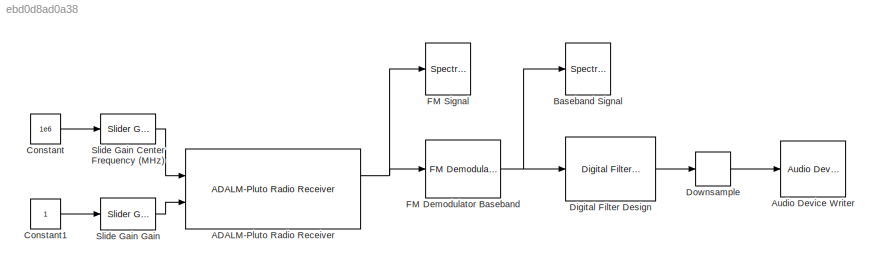
MODEL slx_ebd0d8ad0a38
KIND model
CONFIG AbsTol = auto
CONFIG EnableMultiTasking = on
CONFIG FixedStep = auto
CONFIG MaxStep = auto
CONFIG MinStep = auto
CONFIG RelTol = 1e-3
CONFIG SampleTimeConstraint = Unconstrained
CONFIG SolverName = ode45
CONFIG StartTime = 0.0
CONFIG StopTime = inf
BLOCK [Reference] ADALM-Pluto Radio Receiver  REF=plutoradiolib/ADALM-Pluto Radio
Receiver
  Ports = [2, 2]
  SourceBlock = plutoradiolib/ADALM-Pluto Radio\nReceiver
  SourceProductBaseCode = PLUTO
  SourceType = comm.SDRRxPluto
BLOCK [Reference] Audio Device Writer  REF=dspsnks4/Audio Device
Writer
  Ports = [1]
  SourceBlock = dspsnks4/Audio Device\nWriter
  SourceProductBaseCode = DS
  SourceType = Audio Device Writer
BLOCK [SpectrumAnalyzer] Baseband Signal
  Ports = [1]
  ScopeSpecificationString = spbscopes.SpectrumAnalyzerBlockCfg('CurrentConfiguration', extmgr.ConfigurationSet(extmgr.Configuration('Core','General UI',true),extmgr.Configuration('Core','Source UI',true),extmgr.Configuration('Sources','WiredSimulink',true),extmgr.Configuration('Visuals','Spectrum',true,'AxesProperties',struct('Color',{[0 0 0],[0 0 0]},'XColor',{[0.686274509803922 0.686274509803922 0.686274509803922],[0.68627...<+2309ch>
BLOCK [Constant] Constant
  Value = 1e6
BLOCK [Constant] Constant1
BLOCK [Reference] Digital Filter Design  REF=dsparch4/Digital
Filter Design
  Ports = [1, 1]
  SourceBlock = dsparch4/Digital\nFilter Design
  SourceProductBaseCode = DS
  SourceType = Digital Filter Design
  UserDataPersistent = on
BLOCK [DownSample] Downsample
  N = 5
BLOCK [Reference] FM Demodulator Baseband   REF=commanabbnd3/FM
Demodulator
Baseband 
  Ports = [1, 1]
  SourceBlock = commanabbnd3/FM\nDemodulator\nBaseband
  SourceProductBaseCode = CM
  SourceType = FM Demodulator Baseband
BLOCK [SpectrumAnalyzer] FM Signal
  Ports = [1]
  ScopeSpecificationString = spbscopes.SpectrumAnalyzerBlockCfg('CurrentConfiguration', extmgr.ConfigurationSet(extmgr.Configuration('Core','General UI',true),extmgr.Configuration('Core','Source UI',true),extmgr.Configuration('Sources','WiredSimulink',true),extmgr.Configuration('Visuals','Spectrum',true,'AxesProperties',struct('Color',{[0 0 0],[0 0 0]},'XColor',{[0.686274509803922 0.686274509803922 0.686274509803922],[0.68627...<+2265ch>
BLOCK [Reference] Slide Gain Center Frequency (MHz)  REF=simulink/Math
Operations/Slider
Gain
  Ports = [1, 1]
  SourceBlock = simulink/Math\nOperations/Slider\nGain
  SourceProductBaseCode = SL
  SourceType = Slider Gain
BLOCK [Reference] Slide Gain Gain  REF=simulink/Math
Operations/Slider
Gain
  Ports = [1, 1]
  SourceBlock = simulink/Math\nOperations/Slider\nGain
  SourceProductBaseCode = SL
  SourceType = Slider Gain
NET ADALM-Pluto Radio Receiver:1 -> FM Demodulator Baseband :1, FM Signal:1
LINE Constant1:1 -> Slide Gain Gain:1
LINE Constant:1 -> Slide Gain Center Frequency (MHz):1
LINE Digital Filter Design:1 -> Downsample:1
LINE Downsample:1 -> Audio Device Writer:1
NET FM Demodulator Baseband :1 -> Baseband Signal:1, Digital Filter Design:1
LINE Slide Gain Center Frequency (MHz):1 -> ADALM-Pluto Radio Receiver:1
LINE Slide Gain Gain:1 -> ADALM-Pluto Radio Receiver:2
note: NET lines group one-source signal fan-out (src -> all destinations, sorted); 1:1 wires keep LINE
